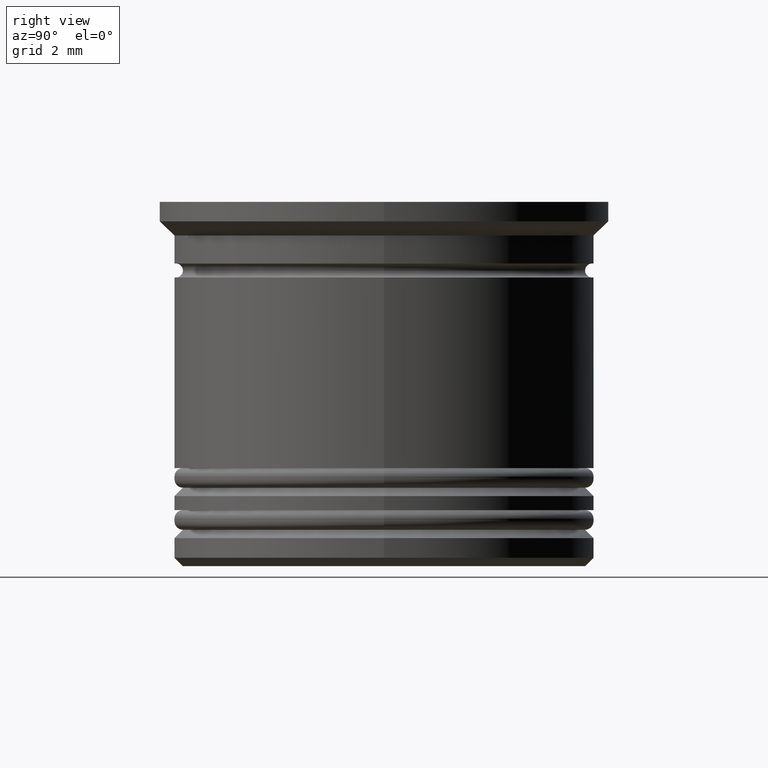
[diagram: clean part render]
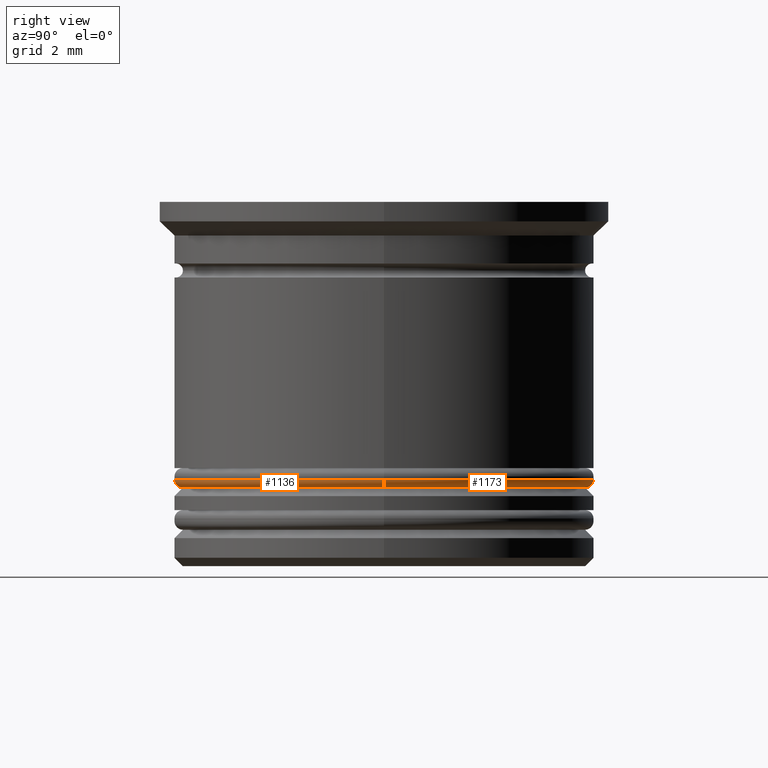
[diagram: same view with one multi-face feature highlighted, each face labeled with its STEP entity id]
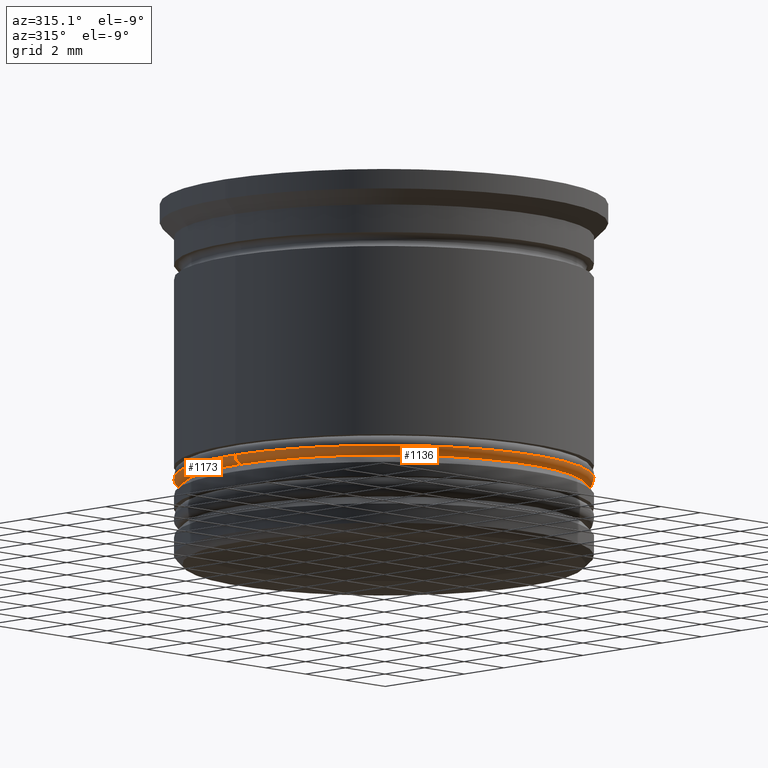
[diagram: same view with one multi-face feature highlighted, each face labeled with its STEP entity id]
A machine part, right view. The highlighted faces form ONE feature: a constant-radius fillet chain: 2 tangent blend faces with common blend radius 0.3 mm. The faces share edges in the B-rep.
A second angle (auxiliary view) of the same feature is appended — it is thin or edge-on in the first view.
Their STEP definitions:
[1] entity #1173 (Torus):
#88 = TOROIDAL_SURFACE ( 'NONE', #1476, 7.200000000000001954, 0.2999999999999999889 ) ;
#148 = FACE_OUTER_BOUND ( 'NONE', #790, .T. ) ;
#152 = CIRCLE ( 'NONE', #834, 0.2999999999999999334 ) ;
#153 = CIRCLE ( 'NONE', #1854, 7.500000000000001776 ) ;
#244 = CARTESIAN_POINT ( 'NONE',  ( -7.200000000000001954, 8.817456953860946247E-16, -9.900000000000005684 ) ) ;
#266 = EDGE_CURVE ( 'NONE', #595, #745, #152, .T. ) ;
#323 = CARTESIAN_POINT ( 'NONE',  ( -7.500000000000001776, 9.184850993605149917E-16, -9.900000000000005684 ) ) ;
#407 = DIRECTION ( 'NONE',  ( 0.000000000000000000, -1.000000000000000000, 0.000000000000000000 ) ) ;
#452 = EDGE_CURVE ( 'NONE', #1381, #1552, #959, .T. ) ;
#466 = ORIENTED_EDGE ( 'NONE', *, *, #452, .F. ) ;
#476 = CIRCLE ( 'NONE', #1057, 7.200000000000001954 ) ;
#518 = CARTESIAN_POINT ( 'NONE',  ( 7.200000000000001954, 0.000000000000000000, -10.20000000000000639 ) ) ;
#583 = DIRECTION ( 'NONE',  ( 1.224646799147353207E-16, 1.000000000000000000, -0.000000000000000000 ) ) ;
#595 = VERTEX_POINT ( 'NONE', #1900 ) ;
#597 = DIRECTION ( 'NONE',  ( 0.000000000000000000, 0.000000000000000000, 1.000000000000000000 ) ) ;
#602 = DIRECTION ( 'NONE',  ( 1.000000000000000000, 0.000000000000000000, 0.000000000000000000 ) ) ;
#660 = ORIENTED_EDGE ( 'NONE', *, *, #846, .F. ) ;
#745 = VERTEX_POINT ( 'NONE', #323 ) ;
#790 = EDGE_LOOP ( 'NONE', ( #1755, #1363, #660, #466 ) ) ;
#834 = AXIS2_PLACEMENT_3D ( 'NONE', #244, #583, #1040 ) ;
#846 = EDGE_CURVE ( 'NONE', #1552, #745, #153, .T. ) ;
#959 = CIRCLE ( 'NONE', #990, 0.2999999999999999334 ) ;
#990 = AXIS2_PLACEMENT_3D ( 'NONE', #1969, #407, #1209 ) ;
#1036 = CARTESIAN_POINT ( 'NONE',  ( 0.000000000000000000, 0.000000000000000000, -9.900000000000005684 ) ) ;
#1040 = DIRECTION ( 'NONE',  ( -1.000000000000000000, 1.224646799147353207E-16, 0.000000000000000000 ) ) ;
#1057 = AXIS2_PLACEMENT_3D ( 'NONE', #1750, #1134, #1110 ) ;
#1093 = EDGE_CURVE ( 'NONE', #595, #1381, #476, .T. ) ;
#1110 = DIRECTION ( 'NONE',  ( 1.000000000000000000, 0.000000000000000000, 0.000000000000000000 ) ) ;
#1134 = DIRECTION ( 'NONE',  ( -0.000000000000000000, -0.000000000000000000, -1.000000000000000000 ) ) ;
#1173 = ADVANCED_FACE ( 'NONE', ( #148 ), #88, .T. ) ;
#1209 = DIRECTION ( 'NONE',  ( 0.000000000000000000, 0.000000000000000000, -1.000000000000000000 ) ) ;
#1363 = ORIENTED_EDGE ( 'NONE', *, *, #266, .T. ) ;
#1381 = VERTEX_POINT ( 'NONE', #518 ) ;
#1476 = AXIS2_PLACEMENT_3D ( 'NONE', #1036, #597, #1654 ) ;
#1516 = CARTESIAN_POINT ( 'NONE',  ( 0.000000000000000000, 0.000000000000000000, -9.900000000000005684 ) ) ;
#1535 = DIRECTION ( 'NONE',  ( 0.000000000000000000, 0.000000000000000000, 1.000000000000000000 ) ) ;
#1552 = VERTEX_POINT ( 'NONE', #1964 ) ;
#1654 = DIRECTION ( 'NONE',  ( 1.000000000000000000, 0.000000000000000000, 0.000000000000000000 ) ) ;
#1750 = CARTESIAN_POINT ( 'NONE',  ( 0.000000000000000000, 0.000000000000000000, -10.20000000000000639 ) ) ;
#1755 = ORIENTED_EDGE ( 'NONE', *, *, #1093, .F. ) ;
#1854 = AXIS2_PLACEMENT_3D ( 'NONE', #1516, #1535, #602 ) ;
#1900 = CARTESIAN_POINT ( 'NONE',  ( -7.200000000000001954, 9.001153973733047589E-16, -10.20000000000000639 ) ) ;
#1964 = CARTESIAN_POINT ( 'NONE',  ( 7.500000000000001776, 0.000000000000000000, -9.900000000000005684 ) ) ;
#1969 = CARTESIAN_POINT ( 'NONE',  ( 7.200000000000001954, 0.000000000000000000, -9.900000000000005684 ) ) ;
[2] entity #1136 (Torus):
#42 = CARTESIAN_POINT ( 'NONE',  ( 0.000000000000000000, 0.000000000000000000, -10.20000000000000639 ) ) ;
#130 = ORIENTED_EDGE ( 'NONE', *, *, #452, .T. ) ;
#152 = CIRCLE ( 'NONE', #834, 0.2999999999999999334 ) ;
#155 = CIRCLE ( 'NONE', #1671, 7.200000000000001954 ) ;
#220 = ORIENTED_EDGE ( 'NONE', *, *, #243, .F. ) ;
#243 = EDGE_CURVE ( 'NONE', #745, #1552, #280, .T. ) ;
#244 = CARTESIAN_POINT ( 'NONE',  ( -7.200000000000001954, 8.817456953860946247E-16, -9.900000000000005684 ) ) ;
#266 = EDGE_CURVE ( 'NONE', #595, #745, #152, .T. ) ;
#280 = CIRCLE ( 'NONE', #1536, 7.500000000000001776 ) ;
#323 = CARTESIAN_POINT ( 'NONE',  ( -7.500000000000001776, 9.184850993605149917E-16, -9.900000000000005684 ) ) ;
#378 = DIRECTION ( 'NONE',  ( 1.000000000000000000, 0.000000000000000000, 0.000000000000000000 ) ) ;
#407 = DIRECTION ( 'NONE',  ( 0.000000000000000000, -1.000000000000000000, 0.000000000000000000 ) ) ;
#452 = EDGE_CURVE ( 'NONE', #1381, #1552, #959, .T. ) ;
#485 = DIRECTION ( 'NONE',  ( -0.000000000000000000, -0.000000000000000000, -1.000000000000000000 ) ) ;
#518 = CARTESIAN_POINT ( 'NONE',  ( 7.200000000000001954, 0.000000000000000000, -10.20000000000000639 ) ) ;
#583 = DIRECTION ( 'NONE',  ( 1.224646799147353207E-16, 1.000000000000000000, -0.000000000000000000 ) ) ;
#595 = VERTEX_POINT ( 'NONE', #1900 ) ;
#630 = ORIENTED_EDGE ( 'NONE', *, *, #266, .F. ) ;
#745 = VERTEX_POINT ( 'NONE', #323 ) ;
#746 = DIRECTION ( 'NONE',  ( 1.000000000000000000, 0.000000000000000000, 0.000000000000000000 ) ) ;
#824 = DIRECTION ( 'NONE',  ( 1.000000000000000000, 0.000000000000000000, 0.000000000000000000 ) ) ;
#834 = AXIS2_PLACEMENT_3D ( 'NONE', #244, #583, #1040 ) ;
#955 = EDGE_CURVE ( 'NONE', #1381, #595, #155, .T. ) ;
#959 = CIRCLE ( 'NONE', #990, 0.2999999999999999334 ) ;
#990 = AXIS2_PLACEMENT_3D ( 'NONE', #1969, #407, #1209 ) ;
#1025 = TOROIDAL_SURFACE ( 'NONE', #1220, 7.200000000000001954, 0.2999999999999999889 ) ;
#1040 = DIRECTION ( 'NONE',  ( -1.000000000000000000, 1.224646799147353207E-16, 0.000000000000000000 ) ) ;
#1136 = ADVANCED_FACE ( 'NONE', ( #1353 ), #1025, .T. ) ;
#1146 = CARTESIAN_POINT ( 'NONE',  ( 0.000000000000000000, 0.000000000000000000, -9.900000000000005684 ) ) ;
#1209 = DIRECTION ( 'NONE',  ( 0.000000000000000000, 0.000000000000000000, -1.000000000000000000 ) ) ;
#1220 = AXIS2_PLACEMENT_3D ( 'NONE', #1531, #1231, #746 ) ;
#1231 = DIRECTION ( 'NONE',  ( 0.000000000000000000, 0.000000000000000000, 1.000000000000000000 ) ) ;
#1353 = FACE_OUTER_BOUND ( 'NONE', #1802, .T. ) ;
#1381 = VERTEX_POINT ( 'NONE', #518 ) ;
#1531 = CARTESIAN_POINT ( 'NONE',  ( 0.000000000000000000, 0.000000000000000000, -9.900000000000005684 ) ) ;
#1536 = AXIS2_PLACEMENT_3D ( 'NONE', #1146, #1769, #378 ) ;
#1552 = VERTEX_POINT ( 'NONE', #1964 ) ;
#1671 = AXIS2_PLACEMENT_3D ( 'NONE', #42, #485, #824 ) ;
#1769 = DIRECTION ( 'NONE',  ( 0.000000000000000000, 0.000000000000000000, 1.000000000000000000 ) ) ;
#1802 = EDGE_LOOP ( 'NONE', ( #630, #1927, #130, #220 ) ) ;
#1900 = CARTESIAN_POINT ( 'NONE',  ( -7.200000000000001954, 9.001153973733047589E-16, -10.20000000000000639 ) ) ;
#1927 = ORIENTED_EDGE ( 'NONE', *, *, #955, .F. ) ;
#1964 = CARTESIAN_POINT ( 'NONE',  ( 7.500000000000001776, 0.000000000000000000, -9.900000000000005684 ) ) ;
#1969 = CARTESIAN_POINT ( 'NONE',  ( 7.200000000000001954, 0.000000000000000000, -9.900000000000005684 ) ) ;